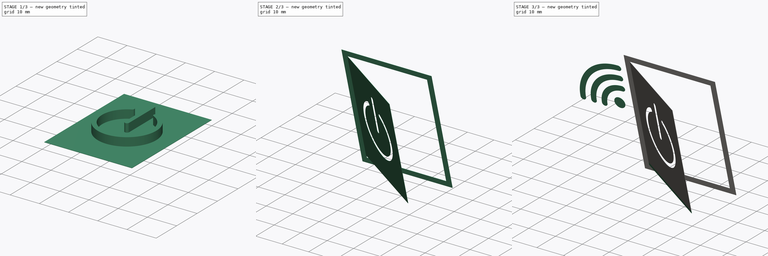
[diagram: build sequence overview — one tinted view per stage of 3, left to right]
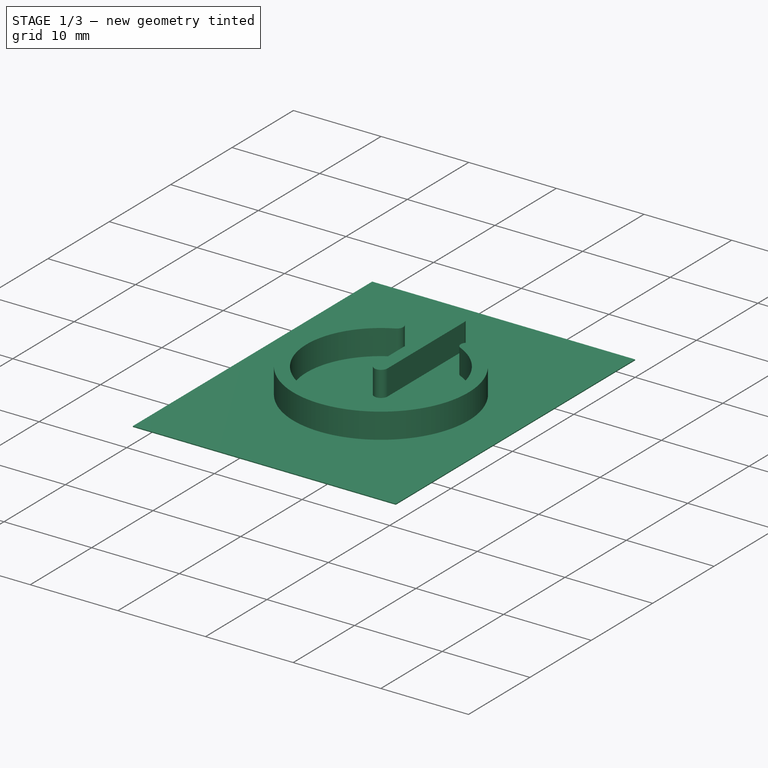
[diagram: stage 1 of 3 — iso view after this stage's code; geometry added in this stage tinted green]
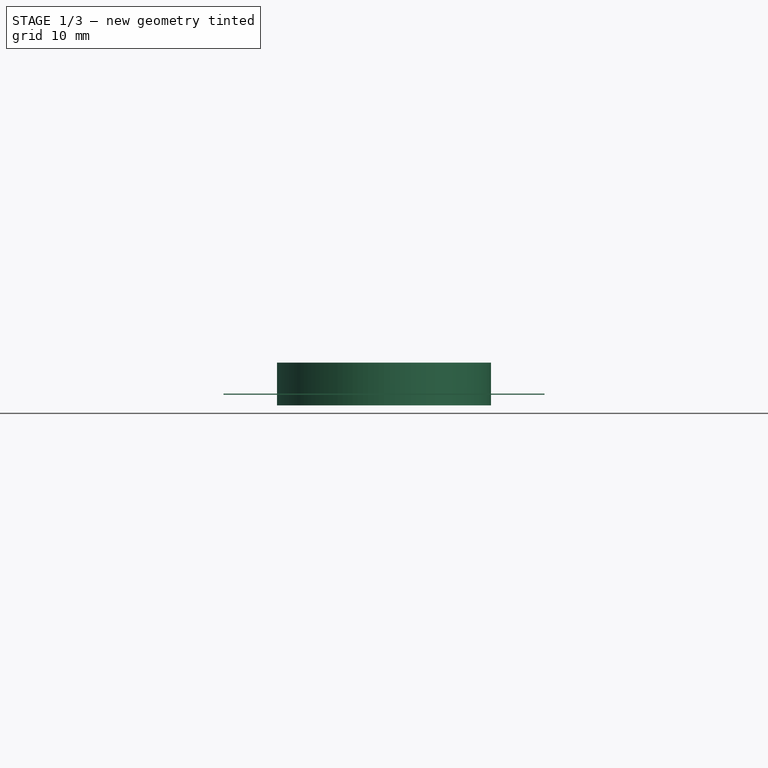
[diagram: stage 1 of 3 — front view after this stage's code; geometry added in this stage tinted green]
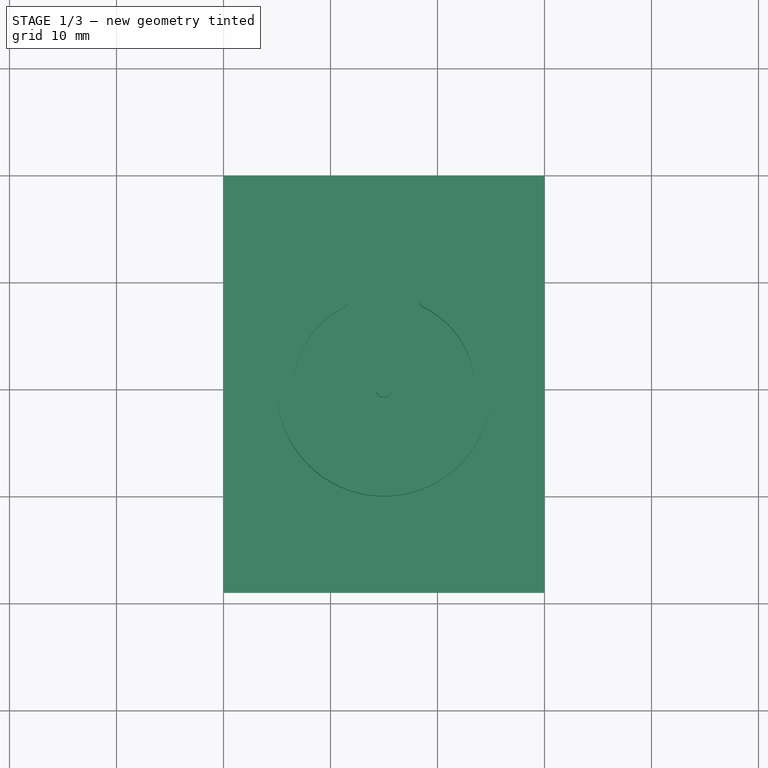
[diagram: stage 1 of 3 — top view after this stage's code; geometry added in this stage tinted green]
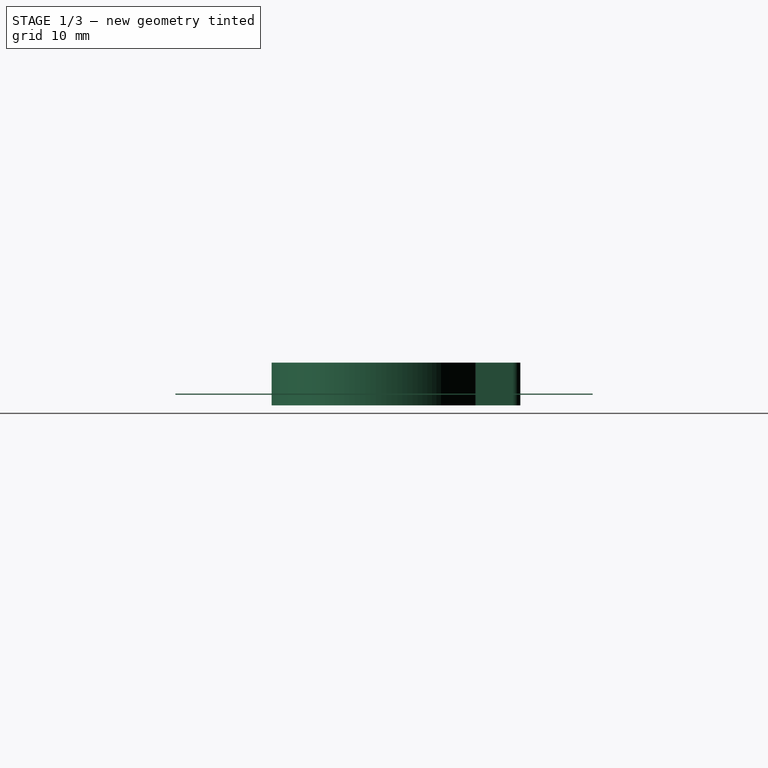
[diagram: stage 1 of 3 — right view after this stage's code; geometry added in this stage tinted green]
FCSTD DOCUMENT  (FreeCAD 0.17R13509 (Git))
Label: WakeOnDoor
License: All rights reserved
LicenseURL: http://en.wikipedia.org/wiki/All_rights_reserved
objects: Sketcher::SketchObject×5, Part::Extrusion×5, Part::Cut×1, Part::MultiFuse×1
note: 12 computed .brp shape members not serialized (recipe doc carries the construction recipe); baked Part::Feature solids carry a one-line shape summary decoded from their .brp

FEATURE [Sketcher::SketchObject] Sketch  label="SketchDoor"
  sketch-geometry (4):
    g0: LineSegment StartX=30 StartY=40 StartZ=0 EndX=0 EndY=40 EndZ=0
    g1: LineSegment StartX=0 StartY=40 StartZ=0 EndX=0 EndY=1 EndZ=0
    g2: LineSegment StartX=0 StartY=1 StartZ=0 EndX=30 EndY=1 EndZ=0
    g3: LineSegment StartX=30 StartY=1 StartZ=0 EndX=30 EndY=40 EndZ=0
  constraints (12):
    c: Horizontal(g0)
    c: PointOnObject(g0,g-2)
    c: Distance(g0) = 30
    c: Coincident(g0,g1)
    c: Coincident(g1,g2)
    c: Coincident(g2,g3)
    c: Coincident(g3,g0)
    c: DistanceY(g-1,g1) = 1
    c: Horizontal(g2)
    c: Vertical(g1)
    c: Vertical(g3)
    c: DistanceY(g-1,g0) = 40
FEATURE [Sketcher::SketchObject] Sketch001  label="PowerIcon"
  Placement = pos=(0,0,-1) rot=(0,0,1;0rad)
  sketch-geometry (8):
    g0: ArcOfCircle CenterX=15 CenterY=20 CenterZ=0 NormalX=0 NormalY=0 NormalZ=1 AngleXU=0 Radius=10 StartAngle=2.02182 EndAngle=7.40295
    g1: ArcOfCircle CenterX=15 CenterY=32.5 CenterZ=0 NormalX=0 NormalY=0 NormalZ=1 AngleXU=0 Radius=0.75 StartAngle=0 EndAngle=3.14159
    g2: ArcOfCircle CenterX=15 CenterY=20 CenterZ=0 NormalX=0 NormalY=0 NormalZ=1 AngleXU=0 Radius=0.75 StartAngle=3.14159 EndAngle=6.28319
    g3: LineSegment StartX=14.25 StartY=32.5 StartZ=0 EndX=14.25 EndY=20 EndZ=0
    g4: LineSegment StartX=15.75 StartY=32.5 StartZ=0 EndX=15.75 EndY=20 EndZ=0
    g5: ArcOfCircle CenterX=15 CenterY=20 CenterZ=0 NormalX=0 NormalY=0 NormalZ=1 AngleXU=0 Radius=8.5 StartAngle=2.02182 EndAngle=7.40295
    g6: ArcOfCircle CenterX=10.968 CenterY=28.325 CenterZ=0 NormalX=0 NormalY=0 NormalZ=1 AngleXU=0 Radius=0.75 StartAngle=5.16342 EndAngle=8.30501
    g7: ArcOfCircle CenterX=19.032 CenterY=28.325 CenterZ=0 NormalX=0 NormalY=0 NormalZ=1 AngleXU=0 Radius=0.75 StartAngle=1.11977 EndAngle=4.26136
  constraints (18):
    c: Radius(g0) = 10
    c: Tangent(g1,g4) = 1.5708
    c: Tangent(g1,g3) = -1.5708
    c: Tangent(g3,g2) = -1.5708
    c: Tangent(g4,g2) = 1.5708
    c: Vertical(g3)
    c: Equal(g1,g2)
    c: Coincident(g0,g2)
    c: Distance(g0,g1) = 12.5
    c: Distance(g1,g1) = 1.5
    c: Coincident(g5,g0)
    c: Radius(g5) = 8.5
    c: Coincident(g6,g0)
    c: Coincident(g6,g5)
    c: Coincident(g7,g5)
    c: Coincident(g7,g0)
    c: Radius(g6) = 0.75
    c: Radius(g7) = 0.75
FEATURE [Part::Extrusion] Extrude  label="ExtrudeDoor"
  Base = -> Sketch
  Dir = (0,0,1)
  DirMode = 2
  FaceMakerClass = Part::FaceMakerBullseye
  LengthFwd = 0.1
  LengthRev = 0
  Solid = true
  Symmetric = false
FEATURE [Part::Extrusion] Extrude001  label="ExtrudePower"
  Base = -> Sketch001
  Dir = (0,0,1)
  DirMode = 2
  FaceMakerClass = Part::FaceMakerBullseye
  LengthFwd = 4
  LengthRev = 0
  Solid = true
  Symmetric = false
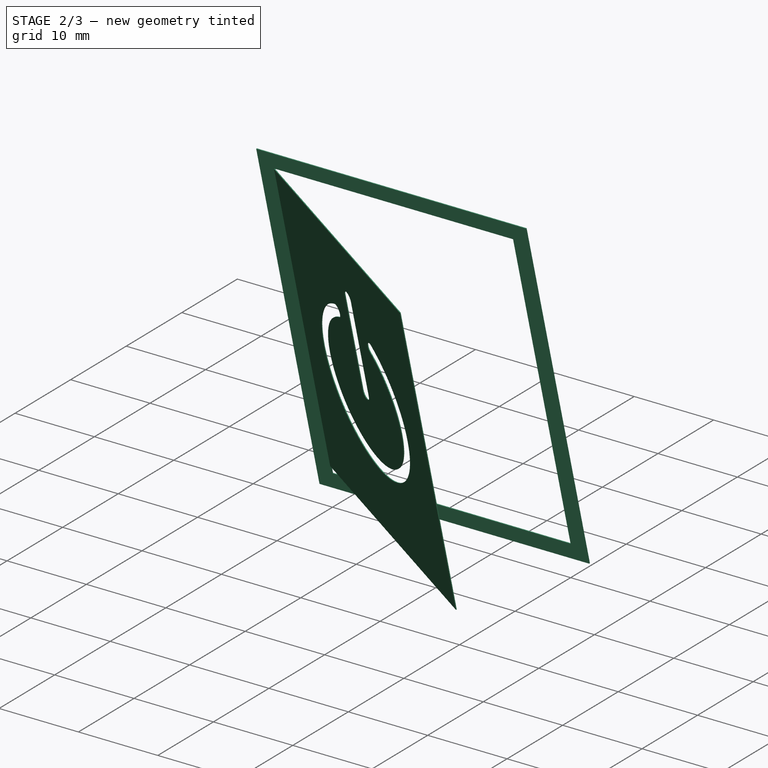
[diagram: stage 2 of 3 — iso view after this stage's code; geometry added in this stage tinted green]
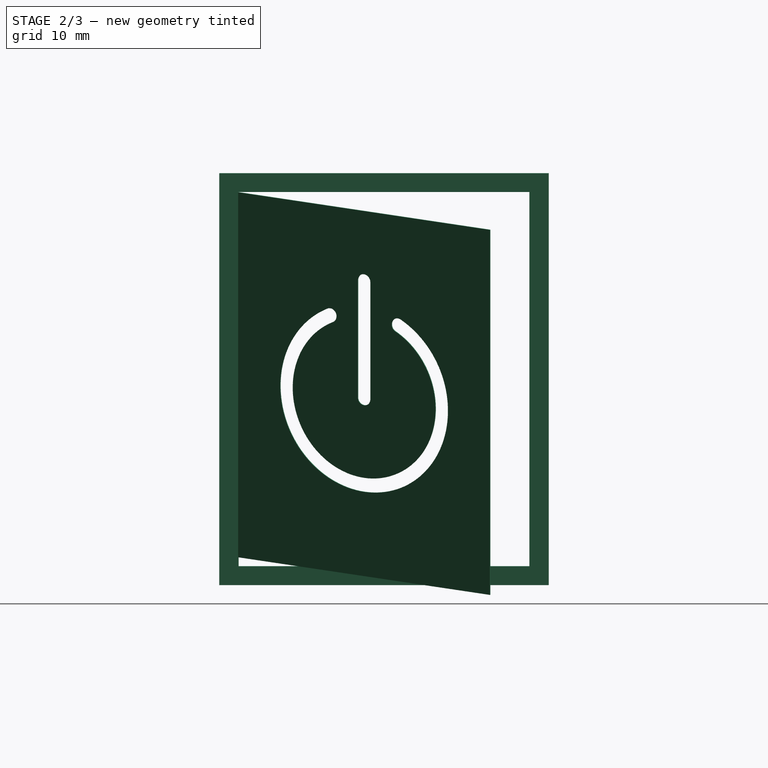
[diagram: stage 2 of 3 — front view after this stage's code; geometry added in this stage tinted green]
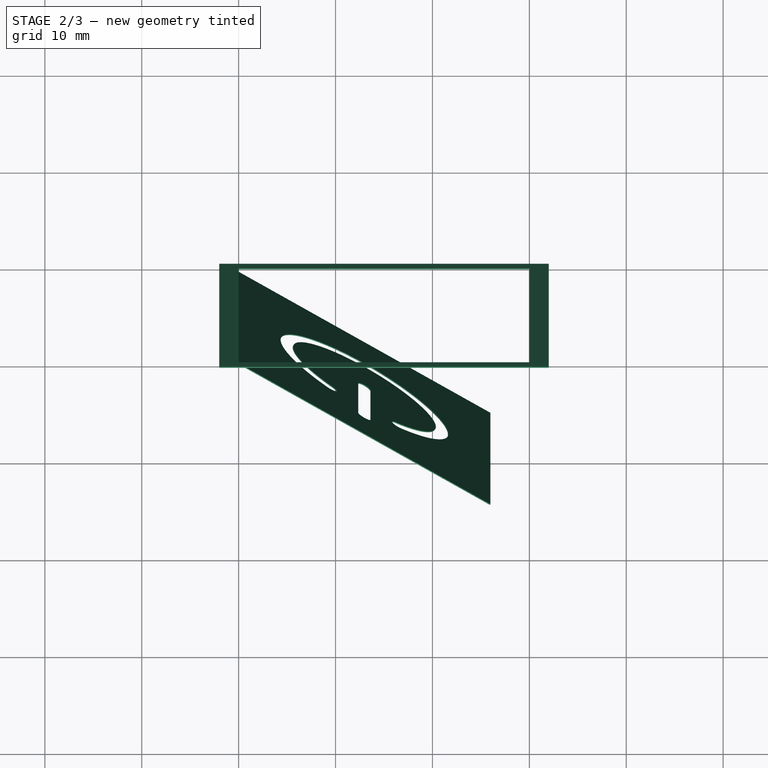
[diagram: stage 2 of 3 — top view after this stage's code; geometry added in this stage tinted green]
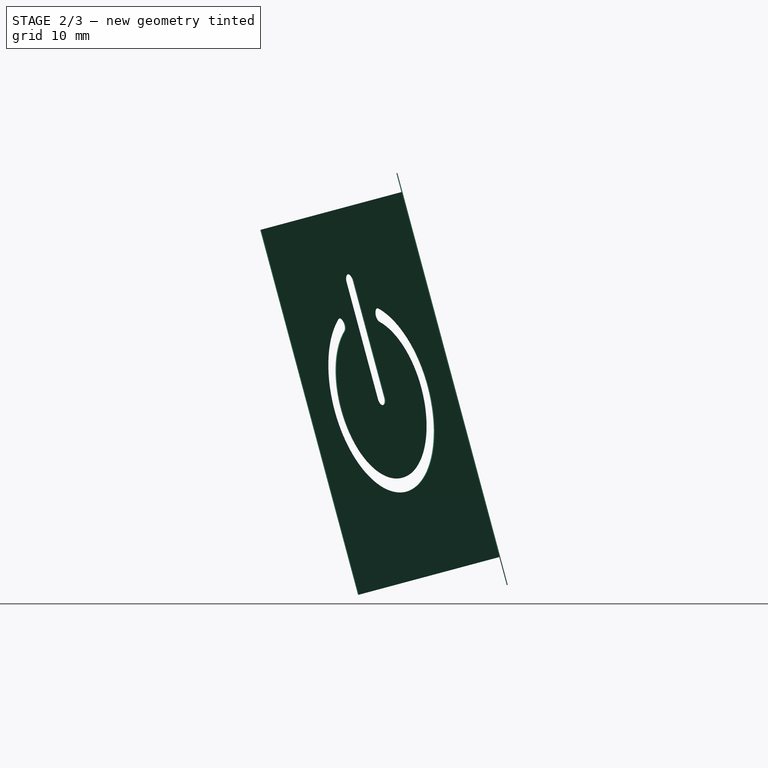
[diagram: stage 2 of 3 — right view after this stage's code; geometry added in this stage tinted green]
FEATURE [Sketcher::SketchObject] Sketch002  label="DoorFrame"
  sketch-geometry (8):
    g0: LineSegment StartX=-2 StartY=42 StartZ=0 EndX=32 EndY=42 EndZ=0
    g1: LineSegment StartX=32 StartY=42 StartZ=0 EndX=32 EndY=-2 EndZ=0
    g2: LineSegment StartX=32 StartY=-2 StartZ=0 EndX=-2 EndY=-2 EndZ=0
    g3: LineSegment StartX=-2 StartY=-2 StartZ=0 EndX=-2 EndY=42 EndZ=0
    g4: LineSegment StartX=30 StartY=40 StartZ=0 EndX=0 EndY=40 EndZ=0
    g5: LineSegment StartX=0 StartY=40 StartZ=0 EndX=0 EndY=0 EndZ=0
    g6: LineSegment StartX=0 StartY=0 StartZ=0 EndX=30 EndY=0 EndZ=0
    g7: LineSegment StartX=30 StartY=0 StartZ=0 EndX=30 EndY=40 EndZ=0
  constraints (23):
    c: Coincident(g1,g2)
    c: Coincident(g2,g3)
    c: Coincident(g3,g0)
    c: Horizontal(g0)
    c: Horizontal(g2)
    c: Vertical(g1)
    c: Vertical(g3)
    c: Horizontal(g4)
    c: DistanceX(g-2,g2) = -2
    c: Distance(g0) = 34
    c: Distance(g4) = 30
    c: Coincident(g4,g5)
    c: Vertical(g5)
    c: Coincident(g5,g6)
    c: Horizontal(g6)
    c: Coincident(g6,g7)
    c: Coincident(g7,g4)
    c: Vertical(g7)
    c: DistanceY(g-1,g5) = 0
    c: Distance(g5) = 40
    c: Distance(g2,g6) = 2
    c: Distance(g4,g0) = 2
    c: Coincident(g1,g0)
FEATURE [Part::Extrusion] Extrude002  label="ExtrudeFrame"
  Base = -> Sketch002
  Dir = (0,0,1)
  DirMode = 2
  FaceMakerClass = Part::FaceMakerBullseye
  LengthFwd = -0.1
  LengthRev = 0
  Solid = true
  Symmetric = false
FEATURE [Part::Cut] Cut  label="CutDoor"
  Base = -> Extrude
  Placement = pos=(0,0,0) rot=(0,1,0;-0.523599rad)
  Tool = -> Extrude001
FEATURE [Part::MultiFuse] Fusion  label="FusionDoor"
  Placement = pos=(0,0,0) rot=(1,0,0;1.8326rad)
  Shapes = -> [Cut,Extrude002]
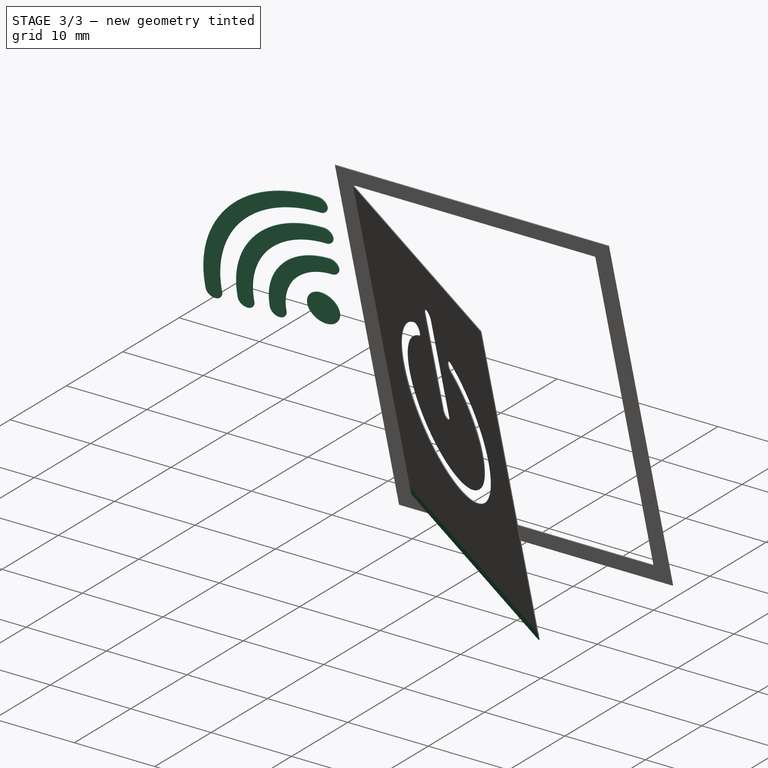
[diagram: stage 3 of 3 — iso view after this stage's code; geometry added in this stage tinted green]
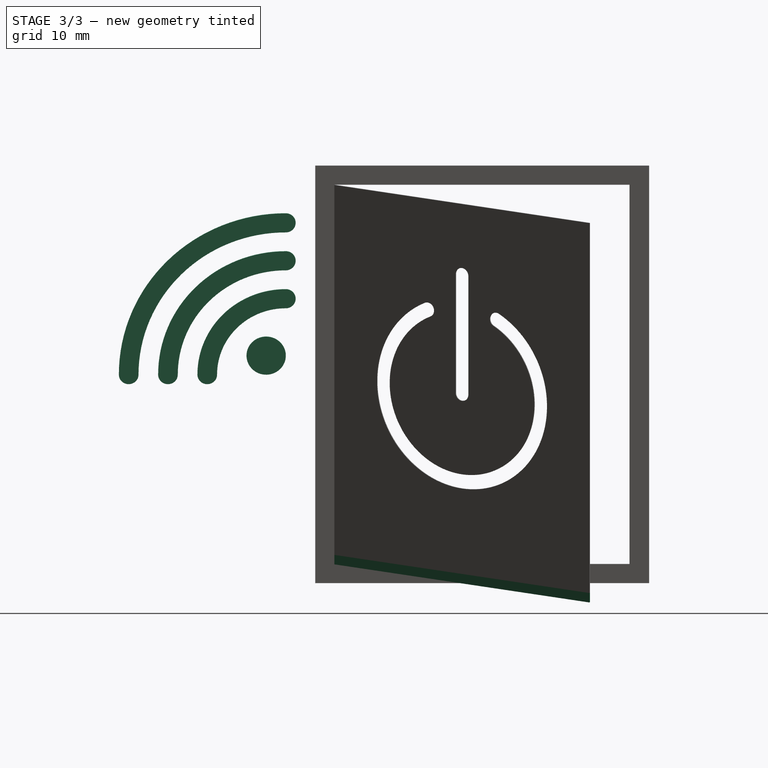
[diagram: stage 3 of 3 — front view after this stage's code; geometry added in this stage tinted green]
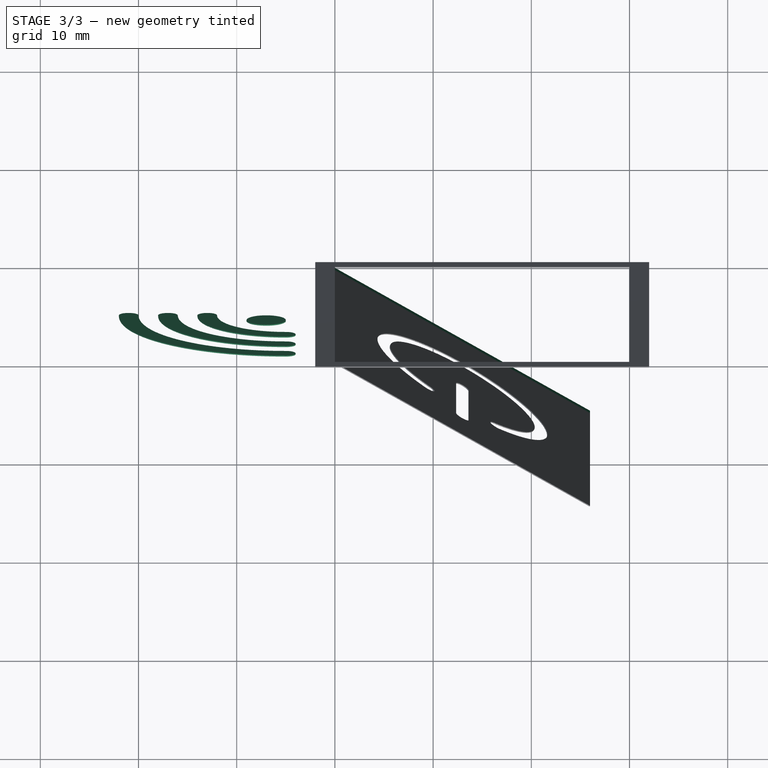
[diagram: stage 3 of 3 — top view after this stage's code; geometry added in this stage tinted green]
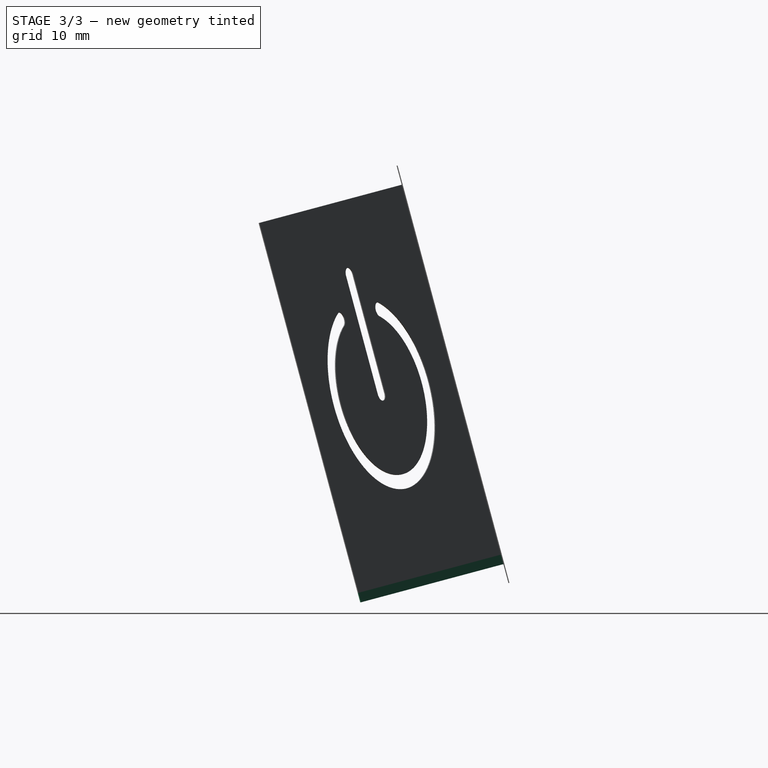
[diagram: stage 3 of 3 — right view after this stage's code; geometry added in this stage tinted green]
FEATURE [Sketcher::SketchObject] Sketch003  label="SketchAirWave"
  sketch-geometry (13):
    g0: Circle CenterX=-7 CenterY=22 CenterZ=0 NormalX=0 NormalY=0 NormalZ=1 AngleXU=0 Radius=2
    g1: ArcOfCircle CenterX=-5 CenterY=20 CenterZ=0 NormalX=0 NormalY=0 NormalZ=1 AngleXU=0 Radius=7.0021 StartAngle=1.56431 EndAngle=3.13544
    g2: ArcOfCircle CenterX=-5 CenterY=20 CenterZ=0 NormalX=0 NormalY=0 NormalZ=1 AngleXU=0 Radius=9 StartAngle=1.56574 EndAngle=3.13676
    g3: ArcOfCircle CenterX=-5 CenterY=28.0009 CenterZ=0 NormalX=0 NormalY=0 NormalZ=1 AngleXU=0 Radius=1 StartAngle=4.75783 EndAngle=7.80849
    g4: ArcOfCircle CenterX=-5 CenterY=20 CenterZ=0 NormalX=0 NormalY=0 NormalZ=1 AngleXU=0 Radius=11.0019 StartAngle=1.56692 EndAngle=3.14164
    g5: ArcOfCircle CenterX=-5 CenterY=20 CenterZ=0 NormalX=0 NormalY=0 NormalZ=1 AngleXU=0 Radius=13 StartAngle=1.56746 EndAngle=3.1416
    g6: ArcOfCircle CenterX=-5 CenterY=32.0009 CenterZ=0 NormalX=0 NormalY=0 NormalZ=1 AngleXU=0 Radius=1 StartAngle=4.7551 EndAngle=7.81064
    g7: ArcOfCircle CenterX=-17.0009 CenterY=20 CenterZ=0 NormalX=0 NormalY=0 NormalZ=1 AngleXU=0 Radius=0.999069 StartAngle=3.14172 EndAngle=6.28264
    g8: ArcOfCircle CenterX=-5 CenterY=20 CenterZ=0 NormalX=0 NormalY=0 NormalZ=1 AngleXU=0 Radius=15.0018 StartAngle=1.56798 EndAngle=3.14162
    g9: ArcOfCircle CenterX=-5 CenterY=20 CenterZ=0 NormalX=0 NormalY=0 NormalZ=1 AngleXU=0 Radius=17 StartAngle=1.56834 EndAngle=3.1416
    g10: ArcOfCircle CenterX=-21.0009 CenterY=20 CenterZ=0 NormalX=0 NormalY=0 NormalZ=1 AngleXU=0 Radius=0.999113 StartAngle=3.14164 EndAngle=6.28282
    g11: ArcOfCircle CenterX=-5 CenterY=36.0008 CenterZ=0 NormalX=0 NormalY=0 NormalZ=1 AngleXU=0 Radius=1 StartAngle=4.75459 EndAngle=7.81214
    g12: ArcOfCircle CenterX=-13.0009 CenterY=20 CenterZ=0 NormalX=0 NormalY=0 NormalZ=1 AngleXU=0 Radius=0.999903 StartAngle=3.09805 EndAngle=6.32631
  constraints (34):
    c: DistanceY(g-1,g0) = 22
    c: Radius(g0) = 2
    c: Coincident(g2,g1)
    c: Radius(g2) = 9
    c: Coincident(g3,g2)
    c: Coincident(g3,g1)
    c: Radius(g3) = 1
    c: DistanceX(g-2,g1) = -5
    c: DistanceY(g-1,g1) = 20
    c: DistanceX(g-2,g3) = -5
    c: DistanceX(g-2,g0) = -7
    c: Coincident(g4,g1)
    c: Coincident(g5,g1)
    c: Coincident(g4,g7)
    c: Coincident(g5,g7)
    c: Coincident(g6,g4)
    c: Coincident(g6,g5)
    c: Radius(g6) = 1
    c: DistanceY(g-1,g7) = 20
    c: DistanceX(g-2,g6) = -5
    c: Coincident(g8,g1)
    c: Coincident(g9,g1)
    c: Coincident(g9,g11)
    c: Coincident(g8,g11)
    c: Radius(g11) = 1
    c: DistanceX(g-2,g11) = -5
    c: Coincident(g10,g9)
    c: Coincident(g8,g10)
    c: DistanceY(g-1,g10) = 20
    c: Radius(g9) = 17
    c: Radius(g5) = 13
    c: Coincident(g2,g12)
    c: Coincident(g12,g1)
    c: DistanceY(g-1,g12) = 20
FEATURE [Part::Extrusion] Extrude003  label="ExtrudeAirWave"
  Base = -> Sketch003
  Dir = (0,0,1)
  DirMode = 2
  FaceMakerClass = Part::FaceMakerBullseye
  LengthFwd = 0.1
  LengthRev = 0
  Placement = pos=(0,0,0) rot=(1,0,0;1.8326rad)
  Solid = true
  Symmetric = false
FEATURE [Sketcher::SketchObject] Sketch004  label="DoorLowerEdge"
  Placement = pos=(0,0,0) rot=(0,1,0;-0.523599rad)
  sketch-geometry (4):
    g0: LineSegment StartX=0 StartY=0 StartZ=0 EndX=30 EndY=0 EndZ=0
    g1: LineSegment StartX=30 StartY=0 StartZ=0 EndX=30 EndY=1 EndZ=0
    g2: LineSegment StartX=30 StartY=1 StartZ=0 EndX=0 EndY=1 EndZ=0
    g3: LineSegment StartX=0 StartY=1 StartZ=0 EndX=0 EndY=0 EndZ=0
  constraints (11):
    c: Coincident(g0,g1)
    c: Coincident(g1,g2)
    c: Coincident(g2,g3)
    c: Coincident(g3,g0)
    c: Horizontal(g0)
    c: Horizontal(g2)
    c: Vertical(g1)
    c: Vertical(g3)
    c: Coincident(g0,g-1)
    c: Distance(g1) = 1
    c: Distance(g2) = 30
FEATURE [Part::Extrusion] Extrude004  label="ExtrudeDoorLower"
  Base = -> Sketch004
  Dir = (-0.5,0,0.866025)
  DirMode = 2
  FaceMakerClass = Part::FaceMakerBullseye
  LengthFwd = 0.1
  LengthRev = 0
  Placement = pos=(0,0,0) rot=(1,0,0;1.8326rad)
  Solid = true
  Symmetric = false
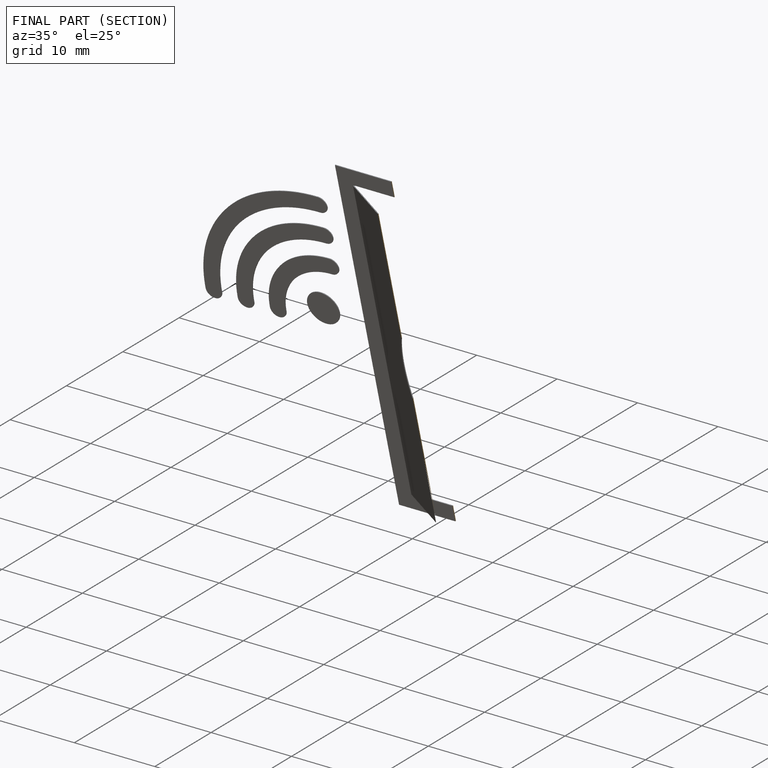
[diagram: finished part — half-section view (interior)]
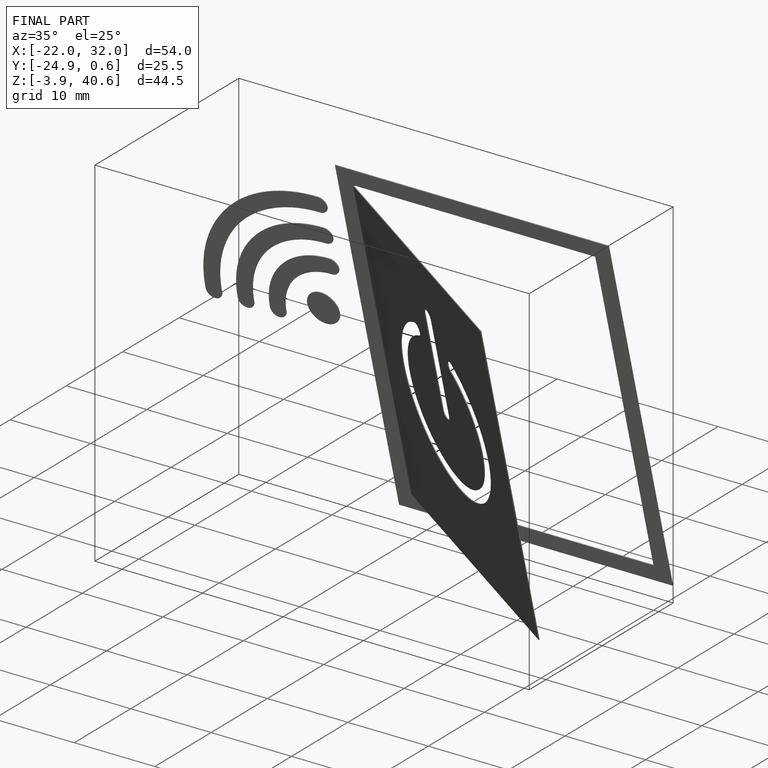
[diagram: finished part — iso view with bounding-box wireframe]
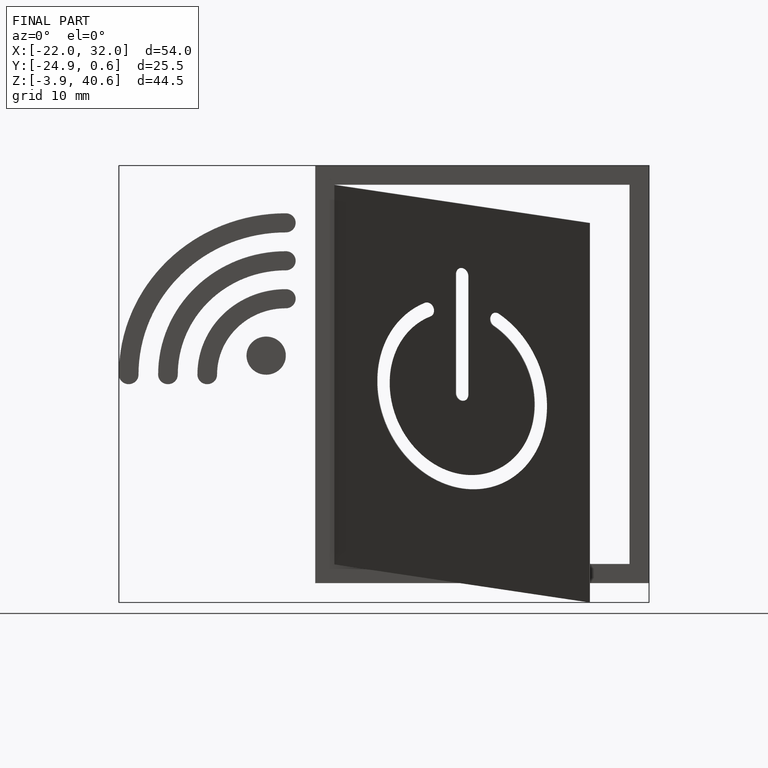
[diagram: finished part — front view with bounding-box wireframe]
